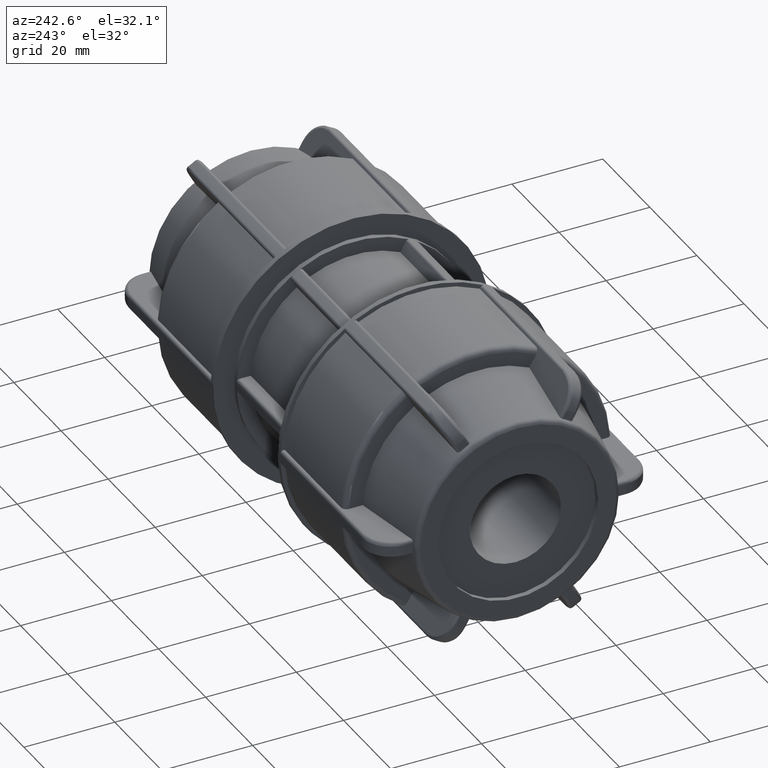
[diagram: clean part render]
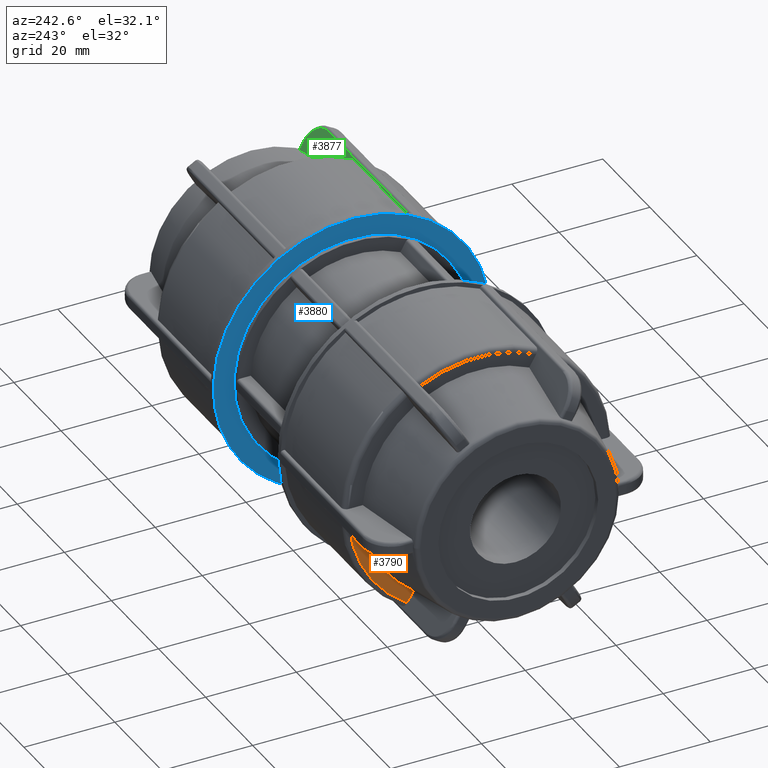
[diagram: same view with three faces highlighted in distinct colors, each labeled with its STEP entity id]
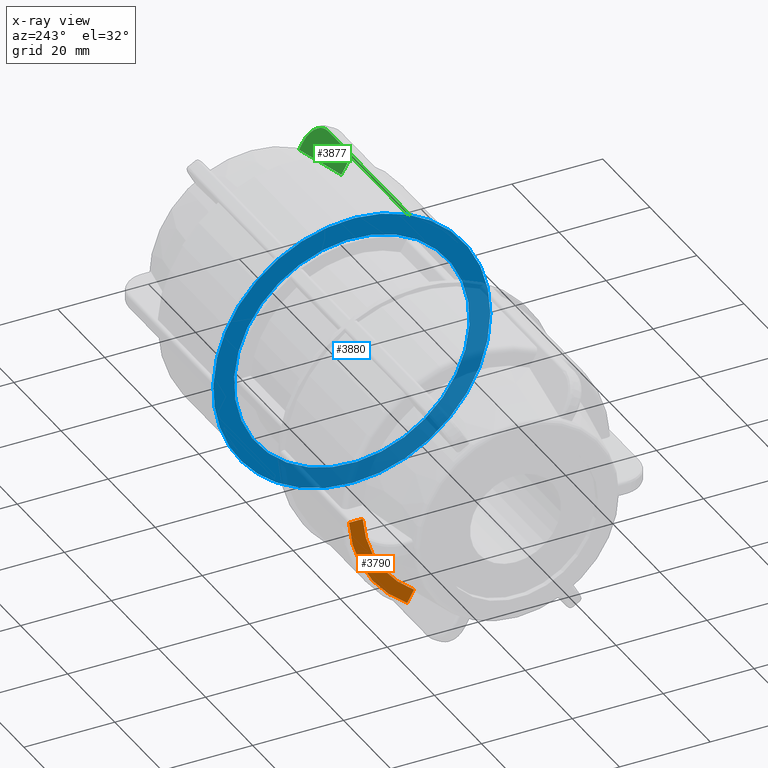
[diagram: x-ray of the same camera — body ghosted, the three highlighted faces saturated]
A machine part, auxiliary view with three faces highlighted in distinct colors.
The next image is the same camera in x-ray (body ghosted, the three faces saturated) — at least one of them is partly hidden behind the body in this view.
Their STEP definitions:

[orange] entity #3790 — the highlighted planar face has unit normal (1, 0, 0).
#256=PLANE('',#4128);
#404=FACE_OUTER_BOUND('',#646,.T.);
#646=EDGE_LOOP('',(#2932,#2933,#2934,#2935));
#911=LINE('',#6596,#1139);
#924=LINE('',#6693,#1152);
#1139=VECTOR('',#4865,3.03518743799491);
#1152=VECTOR('',#4912,3.03518743799491);
#1363=CIRCLE('',#4129,25.4151913701147);
#1364=CIRCLE('',#4130,28.445);
#1670=VERTEX_POINT('',#6591);
#1671=VERTEX_POINT('',#6595);
#1688=VERTEX_POINT('',#6690);
#1689=VERTEX_POINT('',#6692);
#2130=EDGE_CURVE('',#1671,#1670,#911,.T.);
#2158=EDGE_CURVE('',#1670,#1688,#1363,.T.);
#2159=EDGE_CURVE('',#1688,#1689,#924,.T.);
#2160=EDGE_CURVE('',#1671,#1689,#1364,.T.);
#2932=ORIENTED_EDGE('',*,*,#2130,.T.);
#2933=ORIENTED_EDGE('',*,*,#2158,.T.);
#2934=ORIENTED_EDGE('',*,*,#2159,.T.);
#2935=ORIENTED_EDGE('',*,*,#2160,.F.);
#3790=ADVANCED_FACE('',(#404),#256,.F.);
#4128=AXIS2_PLACEMENT_3D('',#6689,#4908,#4909);
#4129=AXIS2_PLACEMENT_3D('',#6691,#4910,#4911);
#4130=AXIS2_PLACEMENT_3D('',#6694,#4913,#4914);
#4865=DIRECTION('',(1.53080849893419E-16,-0.499999999999999,0.866025403784439));
#4908=DIRECTION('center_axis',(1.,3.06161699786838E-16,0.));
#4909=DIRECTION('ref_axis',(0.,0.,-1.));
#4910=DIRECTION('center_axis',(1.,3.06161699786838E-16,0.));
#4911=DIRECTION('ref_axis',(0.,0.,-1.));
#4912=DIRECTION('',(-3.06161699786838E-16,1.,-1.16738861563361E-16));
#4913=DIRECTION('center_axis',(1.,3.06161699786838E-16,0.));
#4914=DIRECTION('ref_axis',(3.06161699786838E-16,-1.,1.83697019872103E-16));
#6591=CARTESIAN_POINT('',(-39.9,14.0680295414836,-21.1665419282295));
#6595=CARTESIAN_POINT('',(-39.9,15.585623260481,-23.7950913547806));
#6596=CARTESIAN_POINT('',(-39.9,12.1770405358662,-17.8912528939461));
#6689=CARTESIAN_POINT('Origin',(-39.9,25.4151913701147,0.));
#6690=CARTESIAN_POINT('',(-39.9,25.364777790857,-1.6));
#6691=CARTESIAN_POINT('Origin',(-39.9,-1.22158518214949E-14,0.));
#6692=CARTESIAN_POINT('',(-39.9,28.3999652288519,-1.6));
#6693=CARTESIAN_POINT('',(-39.9,17.2374963462198,-1.6));
#6694=CARTESIAN_POINT('Origin',(-39.9,-1.22158518214949E-14,0.));

[blue] entity #3880 — the highlighted planar face has unit normal (-1, -0, 0).
#208=FACE_BOUND('',#746,.T.);
#287=PLANE('',#4289);
#494=FACE_OUTER_BOUND('',#745,.T.);
#745=EDGE_LOOP('',(#3394));
#746=EDGE_LOOP('',(#3395));
#1251=CIRCLE('',#3931,25.925);
#1398=CIRCLE('',#4204,30.5);
#1491=VERTEX_POINT('',#5499);
#1721=VERTEX_POINT('',#7009);
#1870=EDGE_CURVE('',#1491,#1491,#1251,.T.);
#2223=EDGE_CURVE('',#1721,#1721,#1398,.T.);
#3394=ORIENTED_EDGE('',*,*,#2223,.F.);
#3395=ORIENTED_EDGE('',*,*,#1870,.T.);
#3880=ADVANCED_FACE('',(#494,#208),#287,.T.);
#3931=AXIS2_PLACEMENT_3D('',#5500,#4388,#4389);
#4204=AXIS2_PLACEMENT_3D('',#7010,#5076,#5077);
#4289=AXIS2_PLACEMENT_3D('',#7895,#5313,#5314);
#4388=DIRECTION('center_axis',(1.,3.06161699786838E-16,0.));
#4389=DIRECTION('ref_axis',(0.,0.,-1.));
#5076=DIRECTION('center_axis',(1.,3.06161699786838E-16,0.));
#5077=DIRECTION('ref_axis',(0.,0.,-1.));
#5313=DIRECTION('center_axis',(-1.,-3.06161699786838E-16,0.));
#5314=DIRECTION('ref_axis',(0.,0.,1.));
#5499=CARTESIAN_POINT('',(13.68,14.3234304978806,-21.6089093610109));
#5500=CARTESIAN_POINT('Origin',(13.68,4.18829205308395E-15,0.));
#7009=CARTESIAN_POINT('',(13.68,16.6146425831487,-25.577405103611));
#7010=CARTESIAN_POINT('Origin',(13.68,4.18829205308395E-15,0.));
#7895=CARTESIAN_POINT('Origin',(13.68,30.5,0.));

[green] entity #3877 — the highlighted planar face has unit normal (-0, 0.866, 0.5).
#63=(
BOUNDED_CURVE()
B_SPLINE_CURVE(2,(#7852,#7853,#7854),.UNSPECIFIED.,.F.,.F.)
B_SPLINE_CURVE_WITH_KNOTS((3,3),(0.,1.55517595812831),.UNSPECIFIED.)
CURVE()
GEOMETRIC_REPRESENTATION_ITEM()
RATIONAL_B_SPLINE_CURVE((1.,1.00165971064241,1.00013426190135))
REPRESENTATION_ITEM('')
);
#137=B_SPLINE_CURVE_WITH_KNOTS('',3,(#7506,#7507,#7508,#7509,#7510,#7511),
 .UNSPECIFIED.,.F.,.F.,(4,1,1,4),(0.,0.369700509436027,0.616167515726711,
0.862634522017395),.UNSPECIFIED.);
#153=B_SPLINE_CURVE_WITH_KNOTS('',3,(#7858,#7859,#7860,#7861,#7862,#7863,
#7864,#7865,#7866,#7867),.UNSPECIFIED.,.F.,.F.,(4,2,2,2,4),(0.,0.0421872088120854,
0.0844060247228061,0.126664721365404,0.168959208642008),.UNSPECIFIED.);
#284=PLANE('',#4285);
#491=FACE_OUTER_BOUND('',#741,.T.);
#741=EDGE_LOOP('',(#3376,#3377,#3378,#3379,#3380,#3381,#3382,#3383));
#974=LINE('',#7465,#1202);
#975=LINE('',#7528,#1203);
#1001=LINE('',#7856,#1229);
#1002=LINE('',#7869,#1230);
#1003=LINE('',#7870,#1231);
#1202=VECTOR('',#5210,34.94);
#1203=VECTOR('',#5217,1.7277720038025);
#1229=VECTOR('',#5301,3.03518743799491);
#1230=VECTOR('',#5302,23.94);
#1231=VECTOR('',#5303,0.331897235670802);
#1783=VERTEX_POINT('',#7462);
#1784=VERTEX_POINT('',#7464);
#1786=VERTEX_POINT('',#7504);
#1788=VERTEX_POINT('',#7514);
#1827=VERTEX_POINT('',#7851);
#1828=VERTEX_POINT('',#7855);
#1829=VERTEX_POINT('',#7857);
#1830=VERTEX_POINT('',#7868);
#2309=EDGE_CURVE('',#1783,#1784,#974,.T.);
#2313=EDGE_CURVE('',#1786,#1783,#137,.T.);
#2315=EDGE_CURVE('',#1788,#1786,#975,.T.);
#2373=EDGE_CURVE('',#1827,#1788,#63,.T.);
#2374=EDGE_CURVE('',#1828,#1827,#1001,.T.);
#2375=EDGE_CURVE('',#1829,#1828,#153,.T.);
#2376=EDGE_CURVE('',#1830,#1829,#1002,.T.);
#2377=EDGE_CURVE('',#1784,#1830,#1003,.T.);
#3376=ORIENTED_EDGE('',*,*,#2315,.F.);
#3377=ORIENTED_EDGE('',*,*,#2373,.F.);
#3378=ORIENTED_EDGE('',*,*,#2374,.F.);
#3379=ORIENTED_EDGE('',*,*,#2375,.F.);
#3380=ORIENTED_EDGE('',*,*,#2376,.F.);
#3381=ORIENTED_EDGE('',*,*,#2377,.F.);
#3382=ORIENTED_EDGE('',*,*,#2309,.F.);
#3383=ORIENTED_EDGE('',*,*,#2313,.F.);
#3877=ADVANCED_FACE('',(#491),#284,.T.);
#4285=AXIS2_PLACEMENT_3D('',#7850,#5299,#5300);
#5210=DIRECTION('',(-1.,-4.06320772800905E-16,-5.34843088213067E-17));
#5217=DIRECTION('',(3.49638229557623E-16,-0.5,0.866025403784439));
#5299=DIRECTION('center_axis',(-3.78626265741562E-16,0.866025403784439,
0.5));
#5300=DIRECTION('ref_axis',(3.5527136788005E-16,-0.5,0.866025403784439));
#5301=DIRECTION('',(-1.53080849893419E-16,0.5,-0.866025403784439));
#5302=DIRECTION('',(1.,3.06161699786838E-16,0.));
#5303=DIRECTION('',(-1.53080849893419E-16,0.5,-0.866025403784439));
#7462=CARTESIAN_POINT('',(49.76,-13.5511595467573,26.6712968364557));
#7464=CARTESIAN_POINT('',(14.82,-13.5511595467573,26.6712968364557));
#7465=CARTESIAN_POINT('',(14.25,-13.5511595467573,26.6712968364557));
#7504=CARTESIAN_POINT('',(55.25,-10.8043132094769,21.9136194197016));
#7506=CARTESIAN_POINT('Ctrl Pts',(55.25,-10.8043132094769,21.9136194197016));
#7507=CARTESIAN_POINT('Ctrl Pts',(55.25,-11.4204807252036,22.9808528629137));
#7508=CARTESIAN_POINT('Ctrl Pts',(54.5306011781913,-12.4437559601383,24.7532175599476));
#7509=CARTESIAN_POINT('Ctrl Pts',(52.2217258020105,-13.3630477932419,26.3454777218663));
#7510=CARTESIAN_POINT('Ctrl Pts',(50.5815566876355,-13.5511595467572,26.6712968364557));
#7511=CARTESIAN_POINT('Ctrl Pts',(49.76,-13.5511595467573,26.6712968364557));
#7514=CARTESIAN_POINT('',(55.25,-9.94042720757564,20.4173249724611));
#7528=CARTESIAN_POINT('',(55.25,-5.82428484981671,13.2879572776363));
#7850=CARTESIAN_POINT('Origin',(13.68,-3.14426001510735,8.64601809837322));
#7851=CARTESIAN_POINT('',(39.9,-11.2967482493734,22.7665419282295));
#7852=CARTESIAN_POINT('Ctrl Pts',(39.9,-11.2967482493734,22.7665419282295));
#7853=CARTESIAN_POINT('Ctrl Pts',(48.0085874754597,-10.5804460184274,21.5258700706561));
#7854=CARTESIAN_POINT('Ctrl Pts',(55.2500000000004,-9.9404272075756,20.417324972461));
#7855=CARTESIAN_POINT('',(39.9,-12.8143419683709,25.3950913547805));
#7856=CARTESIAN_POINT('',(39.9,2.29758923673823,-0.779541292953989));
#7857=CARTESIAN_POINT('',(38.76,-13.3852109289219,26.3838653989189));
#7858=CARTESIAN_POINT('Ctrl Pts',(38.76,-13.3852109289219,26.3838653989189));
#7859=CARTESIAN_POINT('Ctrl Pts',(38.9006240293736,-13.3852109289219,26.3838653989189));
#7860=CARTESIAN_POINT('Ctrl Pts',(39.0661236597164,-13.3687333551162,26.355325403902));
#7861=CARTESIAN_POINT('Ctrl Pts',(39.3260279398787,-13.3148596377222,26.2620133881831));
#7862=CARTESIAN_POINT('Ctrl Pts',(39.4663946709315,-13.2679127648657,26.1806990191391));
#7863=CARTESIAN_POINT('Ctrl Pts',(39.6654204568603,-13.1683102713759,26.0081824398542));
#7864=CARTESIAN_POINT('Ctrl Pts',(39.7592572633368,-13.0980119555689,25.8864221851899));
#7865=CARTESIAN_POINT('Ctrl Pts',(39.8670327443908,-12.9678001513763,25.6608887245831));
#7866=CARTESIAN_POINT('Ctrl Pts',(39.9,-12.8848327804985,25.5171850228525));
#7867=CARTESIAN_POINT('Ctrl Pts',(39.9,-12.8143419683709,25.3950913547805));
#7868=CARTESIAN_POINT('',(14.82,-13.3852109289219,26.3838653989189));
#7869=CARTESIAN_POINT('',(27.36,-13.3852109289219,26.3838653989189));
#7870=CARTESIAN_POINT('',(14.82,2.81881531547387,-1.68233134355404));